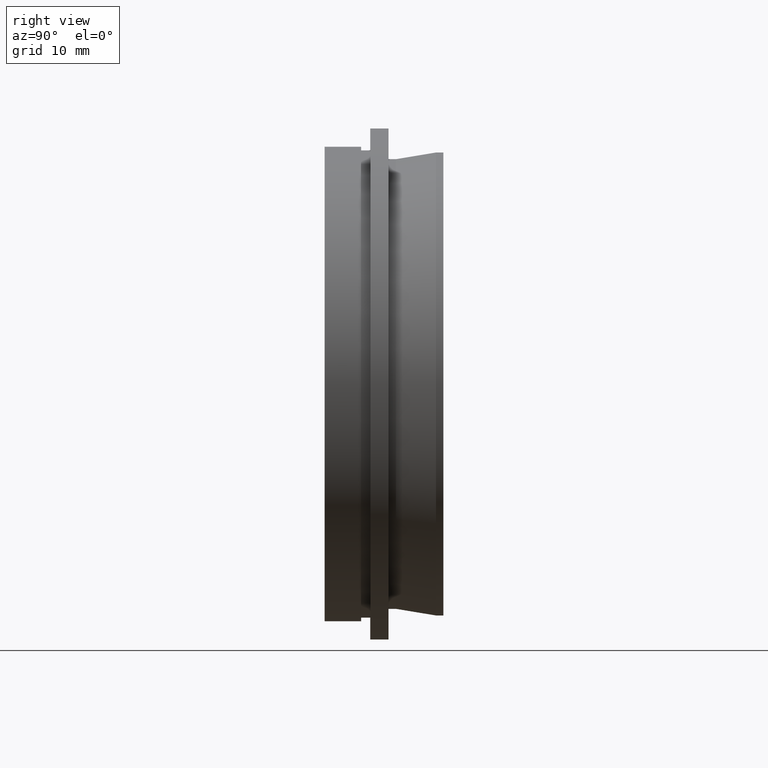
[diagram: clean part render]
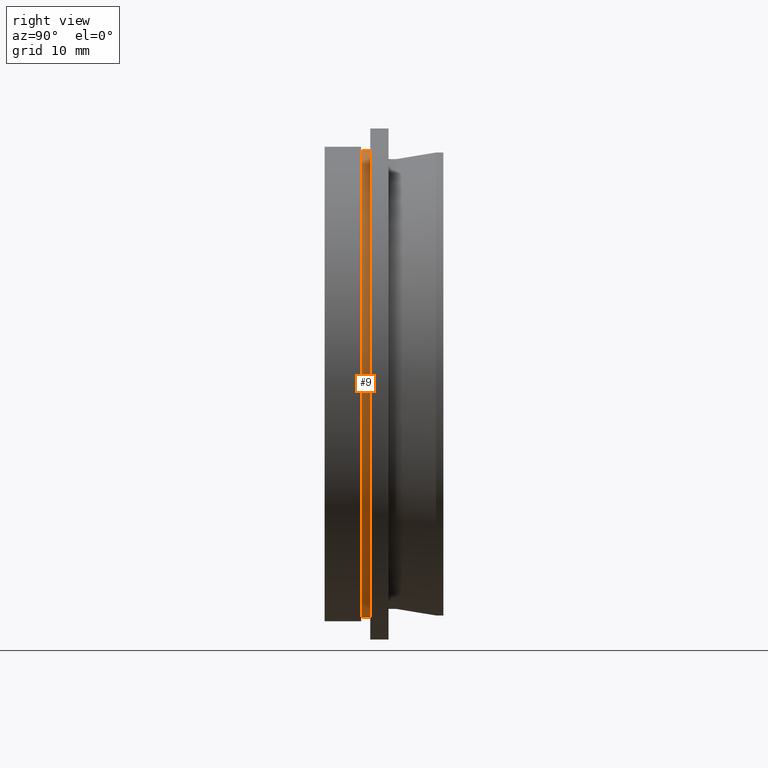
[diagram: same view with one face highlighted and labeled with its STEP entity id]
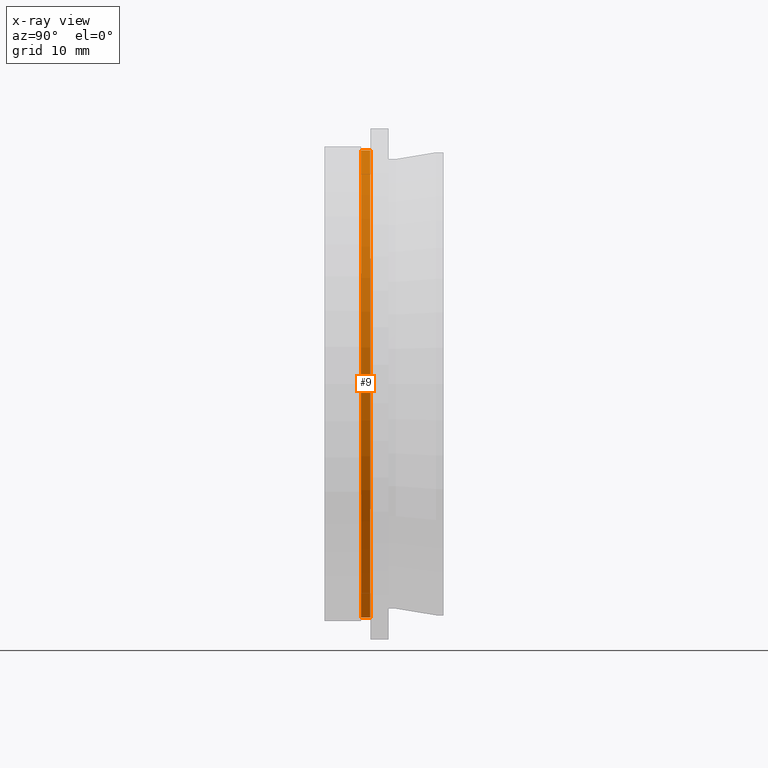
[diagram: x-ray of the same camera — body ghosted, the highlighted face saturated]
A machine part, right view. The second image highlights one B-rep face of the part: STEP entity #9.
The next image is the same camera in x-ray: the body ghosted, the highlighted face saturated — about 0% of this face is hidden behind the body in this view.
In plain terms, the highlighted cylindrical surface (partial cylindrical patch) has radius 25.6 mm, axis along (-0, -1, -0).
Its self-contained STEP definition (entity closure, byte-faithful):
#9 = ADVANCED_FACE ( 'NONE', ( #644 ), #365, .T. ) ;
#54 = AXIS2_PLACEMENT_3D ( 'NONE', #609, #463, #204 ) ;
#55 = ORIENTED_EDGE ( 'NONE', *, *, #400, .F. ) ;
#60 = EDGE_CURVE ( 'NONE', #404, #548, #332, .T. ) ;
#67 = CARTESIAN_POINT ( 'NONE',  ( 0.0000000000000000000, 0.0000000000000000000, -25.60000000000000100 ) ) ;
#90 = VERTEX_POINT ( 'NONE', #104 ) ;
#104 = CARTESIAN_POINT ( 'NONE',  ( 0.0000000000000000000, 5.000000000000001800, -25.60000000000000100 ) ) ;
#106 = CARTESIAN_POINT ( 'NONE',  ( 3.135095805817224400E-015, 0.0000000000000000000, 25.60000000000000100 ) ) ;
#121 = AXIS2_PLACEMENT_3D ( 'NONE', #145, #455, #453 ) ;
#145 = CARTESIAN_POINT ( 'NONE',  ( 0.0000000000000000000, 5.000000000000001800, 0.0000000000000000000 ) ) ;
#169 = DIRECTION ( 'NONE',  ( 0.0000000000000000000, 0.0000000000000000000, -1.000000000000000000 ) ) ;
#178 = CARTESIAN_POINT ( 'NONE',  ( 0.0000000000000000000, 4.000000000000001800, -25.60000000000000100 ) ) ;
#181 = AXIS2_PLACEMENT_3D ( 'NONE', #234, #666, #169 ) ;
#204 = DIRECTION ( 'NONE',  ( 0.0000000000000000000, 0.0000000000000000000, -1.000000000000000000 ) ) ;
#234 = CARTESIAN_POINT ( 'NONE',  ( 0.0000000000000000000, 4.000000000000001800, 0.0000000000000000000 ) ) ;
#236 = CIRCLE ( 'NONE', #121, 25.60000000000000100 ) ;
#254 = VECTOR ( 'NONE', #622, 1000.000000000000000 ) ;
#273 = DIRECTION ( 'NONE',  ( -0.0000000000000000000, -1.000000000000000000, -0.0000000000000000000 ) ) ;
#281 = EDGE_LOOP ( 'NONE', ( #608, #306, #579, #55 ) ) ;
#304 = EDGE_CURVE ( 'NONE', #578, #548, #528, .T. ) ;
#306 = ORIENTED_EDGE ( 'NONE', *, *, #60, .T. ) ;
#332 = LINE ( 'NONE', #106, #254 ) ;
#365 = CYLINDRICAL_SURFACE ( 'NONE', #54, 25.60000000000000100 ) ;
#371 = CARTESIAN_POINT ( 'NONE',  ( 3.135095805817224400E-015, 5.000000000000001800, 25.60000000000000100 ) ) ;
#400 = EDGE_CURVE ( 'NONE', #90, #578, #580, .T. ) ;
#404 = VERTEX_POINT ( 'NONE', #371 ) ;
#417 = VECTOR ( 'NONE', #273, 1000.000000000000000 ) ;
#453 = DIRECTION ( 'NONE',  ( 0.0000000000000000000, 0.0000000000000000000, -1.000000000000000000 ) ) ;
#455 = DIRECTION ( 'NONE',  ( -0.0000000000000000000, -1.000000000000000000, -0.0000000000000000000 ) ) ;
#463 = DIRECTION ( 'NONE',  ( -0.0000000000000000000, -1.000000000000000000, -0.0000000000000000000 ) ) ;
#528 = CIRCLE ( 'NONE', #181, 25.60000000000000100 ) ;
#548 = VERTEX_POINT ( 'NONE', #592 ) ;
#578 = VERTEX_POINT ( 'NONE', #178 ) ;
#579 = ORIENTED_EDGE ( 'NONE', *, *, #304, .F. ) ;
#580 = LINE ( 'NONE', #67, #417 ) ;
#592 = CARTESIAN_POINT ( 'NONE',  ( 3.135095805817224400E-015, 4.000000000000001800, 25.60000000000000100 ) ) ;
#599 = EDGE_CURVE ( 'NONE', #90, #404, #236, .T. ) ;
#608 = ORIENTED_EDGE ( 'NONE', *, *, #599, .T. ) ;
#609 = CARTESIAN_POINT ( 'NONE',  ( 0.0000000000000000000, 0.0000000000000000000, 0.0000000000000000000 ) ) ;
#622 = DIRECTION ( 'NONE',  ( -0.0000000000000000000, -1.000000000000000000, -0.0000000000000000000 ) ) ;
#644 = FACE_OUTER_BOUND ( 'NONE', #281, .T. ) ;
#666 = DIRECTION ( 'NONE',  ( -0.0000000000000000000, -1.000000000000000000, -0.0000000000000000000 ) ) ;